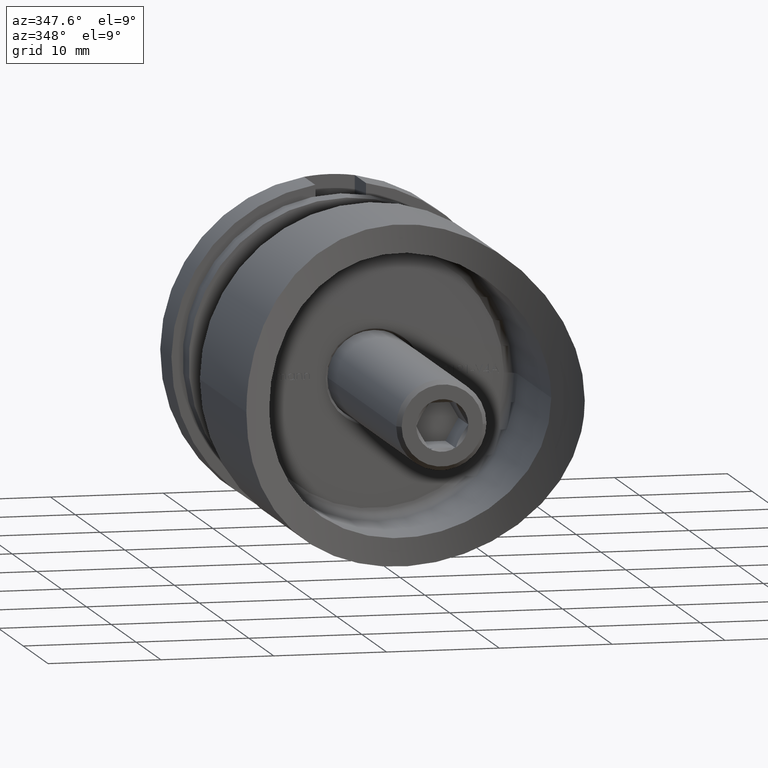
[diagram: clean part render]
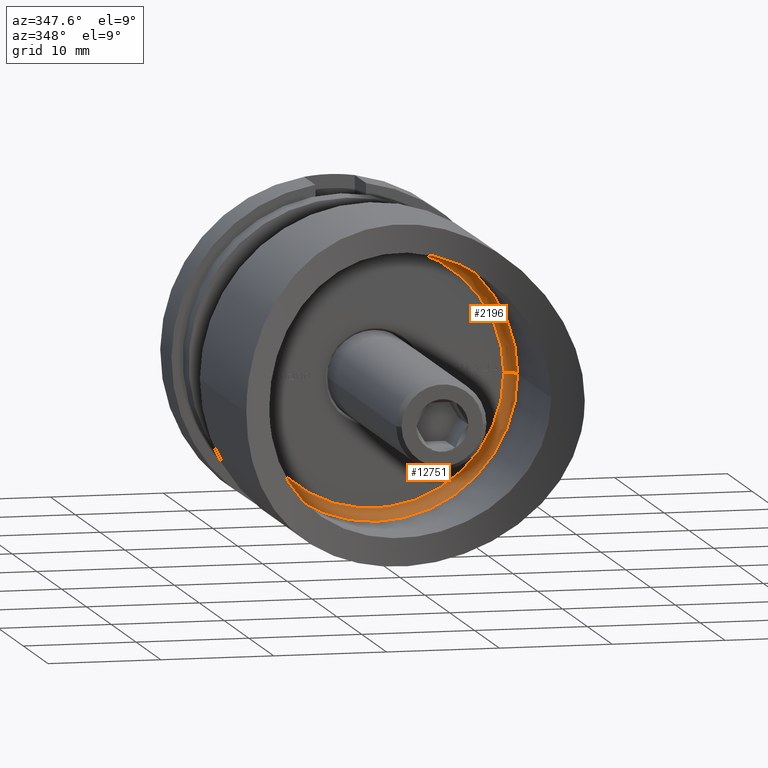
[diagram: same view with one multi-face feature highlighted, each face labeled with its STEP entity id]
A machine part, auxiliary view. The highlighted faces form ONE feature: a constant-radius fillet chain: 2 tangent blend faces with common blend radius 1 mm. The faces share edges in the B-rep.
Their STEP definitions:
[1] entity #2196 (Torus):
#148 = EDGE_LOOP ( 'NONE', ( #9113, #2152, #8918, #1456 ) ) ;
#320 = CIRCLE ( 'NONE', #2301, 0.9999999999999991118 ) ;
#649 = VERTEX_POINT ( 'NONE', #12819 ) ;
#821 = AXIS2_PLACEMENT_3D ( 'NONE', #7320, #8374, #914 ) ;
#914 = DIRECTION ( 'NONE',  ( 1.000000000000000000, 0.000000000000000000, 0.000000000000000000 ) ) ;
#1456 = ORIENTED_EDGE ( 'NONE', *, *, #2139, .F. ) ;
#1583 = DIRECTION ( 'NONE',  ( -1.650797095189058802E-31, -1.000000000000000000, -0.000000000000000000 ) ) ;
#1753 = EDGE_CURVE ( 'NONE', #8262, #13519, #8354, .T. ) ;
#1963 = DIRECTION ( 'NONE',  ( -1.650797095189058802E-31, -1.000000000000000000, -0.000000000000000000 ) ) ;
#1971 = DIRECTION ( 'NONE',  ( 1.000000000000000000, 0.000000000000000000, -1.224646799147353454E-16 ) ) ;
#2139 = EDGE_CURVE ( 'NONE', #649, #13074, #8045, .T. ) ;
#2152 = ORIENTED_EDGE ( 'NONE', *, *, #1753, .F. ) ;
#2196 = ADVANCED_FACE ( 'NONE', ( #10897 ), #3395, .F. ) ;
#2301 = AXIS2_PLACEMENT_3D ( 'NONE', #2660, #10132, #10184 ) ;
#2660 = CARTESIAN_POINT ( 'NONE',  ( 11.49999999999999822, 9.499999999999998224, 0.000000000000000000 ) ) ;
#3027 = CARTESIAN_POINT ( 'NONE',  ( -2.571758278209441661E-15, 9.499999999999998224, 0.000000000000000000 ) ) ;
#3395 = TOROIDAL_SURFACE ( 'NONE', #4874, 11.50000000000000000, 1.000000000000000000 ) ;
#3852 = CARTESIAN_POINT ( 'NONE',  ( 12.49999999999999822, 9.499999999999998224, 0.000000000000000000 ) ) ;
#4025 = DIRECTION ( 'NONE',  ( 1.000000000000000000, -1.650797095189058802E-31, 0.000000000000000000 ) ) ;
#4600 = AXIS2_PLACEMENT_3D ( 'NONE', #10129, #1583, #4789 ) ;
#4789 = DIRECTION ( 'NONE',  ( 1.000000000000000000, 0.000000000000000000, 0.000000000000000000 ) ) ;
#4874 = AXIS2_PLACEMENT_3D ( 'NONE', #3027, #1963, #4025 ) ;
#6214 = CIRCLE ( 'NONE', #9559, 0.9999999999999991118 ) ;
#7132 = CARTESIAN_POINT ( 'NONE',  ( 11.49999999999999822, 10.49999999999999822, 0.000000000000000000 ) ) ;
#7320 = CARTESIAN_POINT ( 'NONE',  ( -2.571758278209441661E-15, 9.499999999999998224, 0.000000000000000000 ) ) ;
#8045 = CIRCLE ( 'NONE', #821, 12.50000000000000000 ) ;
#8108 = CARTESIAN_POINT ( 'NONE',  ( -11.50000000000000178, 9.499999999999998224, 1.408343819019456176E-15 ) ) ;
#8262 = VERTEX_POINT ( 'NONE', #7132 ) ;
#8354 = CIRCLE ( 'NONE', #4600, 11.50000000000000000 ) ;
#8374 = DIRECTION ( 'NONE',  ( 1.650797095189058802E-31, 1.000000000000000000, 0.000000000000000000 ) ) ;
#8649 = DIRECTION ( 'NONE',  ( 1.224646799147353207E-16, -2.021643378665029326E-47, 1.000000000000000000 ) ) ;
#8918 = ORIENTED_EDGE ( 'NONE', *, *, #9790, .T. ) ;
#9113 = ORIENTED_EDGE ( 'NONE', *, *, #10967, .F. ) ;
#9559 = AXIS2_PLACEMENT_3D ( 'NONE', #8108, #8649, #1971 ) ;
#9790 = EDGE_CURVE ( 'NONE', #8262, #13074, #320, .T. ) ;
#9829 = CARTESIAN_POINT ( 'NONE',  ( -11.50000000000000178, 10.49999999999999822, 1.469576158976823947E-15 ) ) ;
#10129 = CARTESIAN_POINT ( 'NONE',  ( -2.571758278209441661E-15, 10.49999999999999822, 0.000000000000000000 ) ) ;
#10132 = DIRECTION ( 'NONE',  ( 0.000000000000000000, 0.000000000000000000, -1.000000000000000000 ) ) ;
#10184 = DIRECTION ( 'NONE',  ( -1.000000000000000000, 0.000000000000000000, 0.000000000000000000 ) ) ;
#10897 = FACE_OUTER_BOUND ( 'NONE', #148, .T. ) ;
#10967 = EDGE_CURVE ( 'NONE', #13519, #649, #6214, .T. ) ;
#12819 = CARTESIAN_POINT ( 'NONE',  ( -12.50000000000000178, 9.499999999999998224, 1.530808498934191521E-15 ) ) ;
#13074 = VERTEX_POINT ( 'NONE', #3852 ) ;
#13519 = VERTEX_POINT ( 'NONE', #9829 ) ;
[2] entity #12751 (Torus):
#320 = CIRCLE ( 'NONE', #2301, 0.9999999999999991118 ) ;
#331 = CARTESIAN_POINT ( 'NONE',  ( -2.571758278209441661E-15, 9.499999999999998224, 0.000000000000000000 ) ) ;
#378 = AXIS2_PLACEMENT_3D ( 'NONE', #5092, #9362, #13522 ) ;
#649 = VERTEX_POINT ( 'NONE', #12819 ) ;
#894 = FACE_OUTER_BOUND ( 'NONE', #8115, .T. ) ;
#1413 = DIRECTION ( 'NONE',  ( 1.000000000000000000, 0.000000000000000000, 0.000000000000000000 ) ) ;
#1537 = ORIENTED_EDGE ( 'NONE', *, *, #10967, .T. ) ;
#1971 = DIRECTION ( 'NONE',  ( 1.000000000000000000, 0.000000000000000000, -1.224646799147353454E-16 ) ) ;
#2301 = AXIS2_PLACEMENT_3D ( 'NONE', #2660, #10132, #10184 ) ;
#2660 = CARTESIAN_POINT ( 'NONE',  ( 11.49999999999999822, 9.499999999999998224, 0.000000000000000000 ) ) ;
#3616 = EDGE_CURVE ( 'NONE', #13519, #8262, #12861, .T. ) ;
#3852 = CARTESIAN_POINT ( 'NONE',  ( 12.49999999999999822, 9.499999999999998224, 0.000000000000000000 ) ) ;
#4009 = ORIENTED_EDGE ( 'NONE', *, *, #9790, .F. ) ;
#4275 = AXIS2_PLACEMENT_3D ( 'NONE', #331, #7801, #1413 ) ;
#4293 = ORIENTED_EDGE ( 'NONE', *, *, #3616, .F. ) ;
#4733 = DIRECTION ( 'NONE',  ( 1.000000000000000000, -1.650797095189058802E-31, 0.000000000000000000 ) ) ;
#5092 = CARTESIAN_POINT ( 'NONE',  ( -2.571758278209441661E-15, 10.49999999999999822, 0.000000000000000000 ) ) ;
#6214 = CIRCLE ( 'NONE', #9559, 0.9999999999999991118 ) ;
#6354 = ORIENTED_EDGE ( 'NONE', *, *, #8459, .F. ) ;
#7132 = CARTESIAN_POINT ( 'NONE',  ( 11.49999999999999822, 10.49999999999999822, 0.000000000000000000 ) ) ;
#7801 = DIRECTION ( 'NONE',  ( 1.650797095189058802E-31, 1.000000000000000000, 0.000000000000000000 ) ) ;
#7874 = CIRCLE ( 'NONE', #4275, 12.50000000000000000 ) ;
#8108 = CARTESIAN_POINT ( 'NONE',  ( -11.50000000000000178, 9.499999999999998224, 1.408343819019456176E-15 ) ) ;
#8115 = EDGE_LOOP ( 'NONE', ( #4293, #1537, #6354, #4009 ) ) ;
#8262 = VERTEX_POINT ( 'NONE', #7132 ) ;
#8459 = EDGE_CURVE ( 'NONE', #13074, #649, #7874, .T. ) ;
#8649 = DIRECTION ( 'NONE',  ( 1.224646799147353207E-16, -2.021643378665029326E-47, 1.000000000000000000 ) ) ;
#9362 = DIRECTION ( 'NONE',  ( -1.650797095189058802E-31, -1.000000000000000000, -0.000000000000000000 ) ) ;
#9482 = AXIS2_PLACEMENT_3D ( 'NONE', #11059, #9984, #4733 ) ;
#9559 = AXIS2_PLACEMENT_3D ( 'NONE', #8108, #8649, #1971 ) ;
#9790 = EDGE_CURVE ( 'NONE', #8262, #13074, #320, .T. ) ;
#9829 = CARTESIAN_POINT ( 'NONE',  ( -11.50000000000000178, 10.49999999999999822, 1.469576158976823947E-15 ) ) ;
#9984 = DIRECTION ( 'NONE',  ( -1.650797095189058802E-31, -1.000000000000000000, -0.000000000000000000 ) ) ;
#10132 = DIRECTION ( 'NONE',  ( 0.000000000000000000, 0.000000000000000000, -1.000000000000000000 ) ) ;
#10184 = DIRECTION ( 'NONE',  ( -1.000000000000000000, 0.000000000000000000, 0.000000000000000000 ) ) ;
#10967 = EDGE_CURVE ( 'NONE', #13519, #649, #6214, .T. ) ;
#11059 = CARTESIAN_POINT ( 'NONE',  ( -2.571758278209441661E-15, 9.499999999999998224, 0.000000000000000000 ) ) ;
#12751 = ADVANCED_FACE ( 'NONE', ( #894 ), #12912, .F. ) ;
#12819 = CARTESIAN_POINT ( 'NONE',  ( -12.50000000000000178, 9.499999999999998224, 1.530808498934191521E-15 ) ) ;
#12861 = CIRCLE ( 'NONE', #378, 11.50000000000000000 ) ;
#12912 = TOROIDAL_SURFACE ( 'NONE', #9482, 11.50000000000000000, 1.000000000000000000 ) ;
#13074 = VERTEX_POINT ( 'NONE', #3852 ) ;
#13519 = VERTEX_POINT ( 'NONE', #9829 ) ;
#13522 = DIRECTION ( 'NONE',  ( 1.000000000000000000, 0.000000000000000000, 0.000000000000000000 ) ) ;